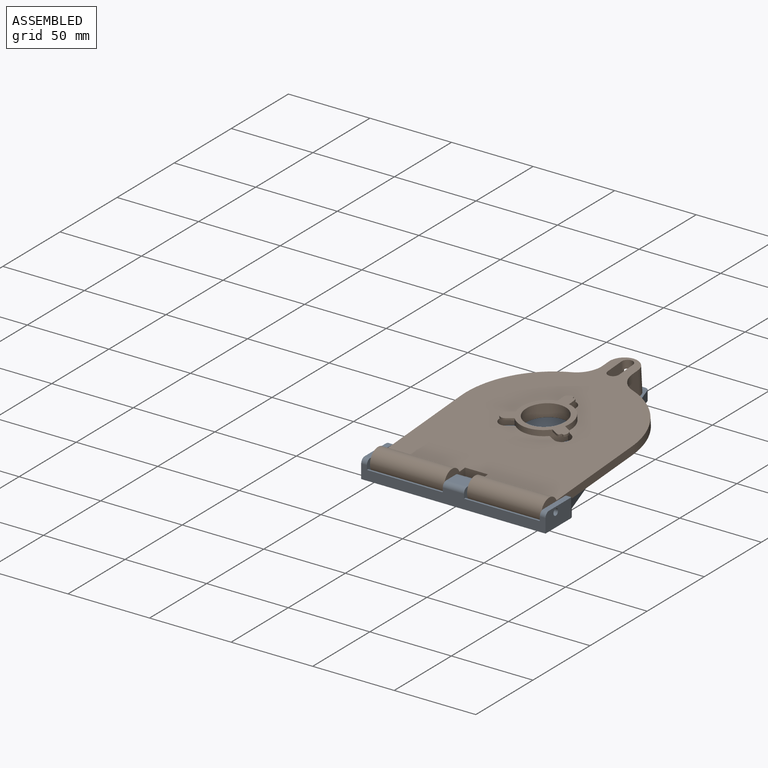
[diagram: assembled view]
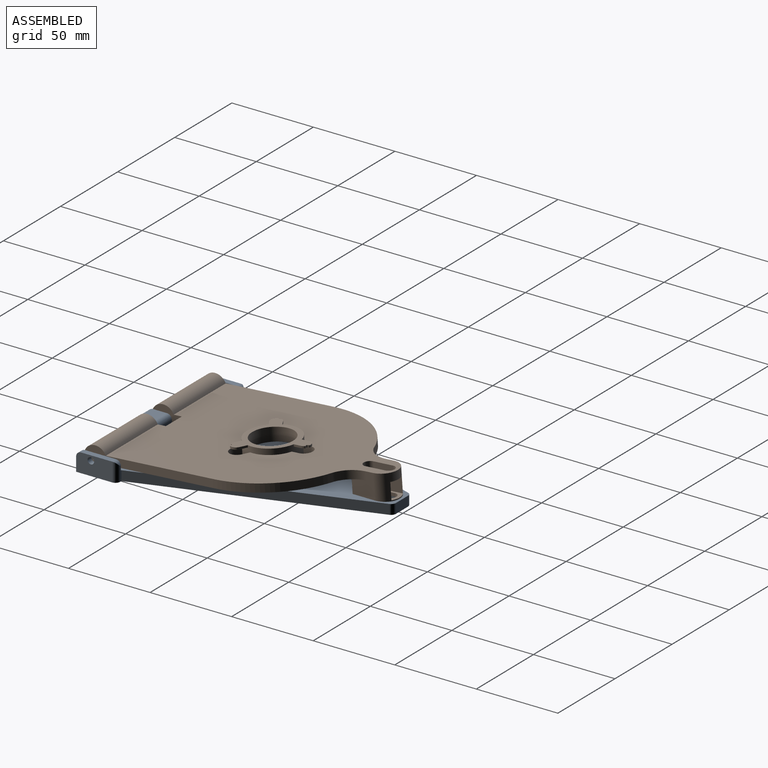
[diagram: assembled view, second angle]
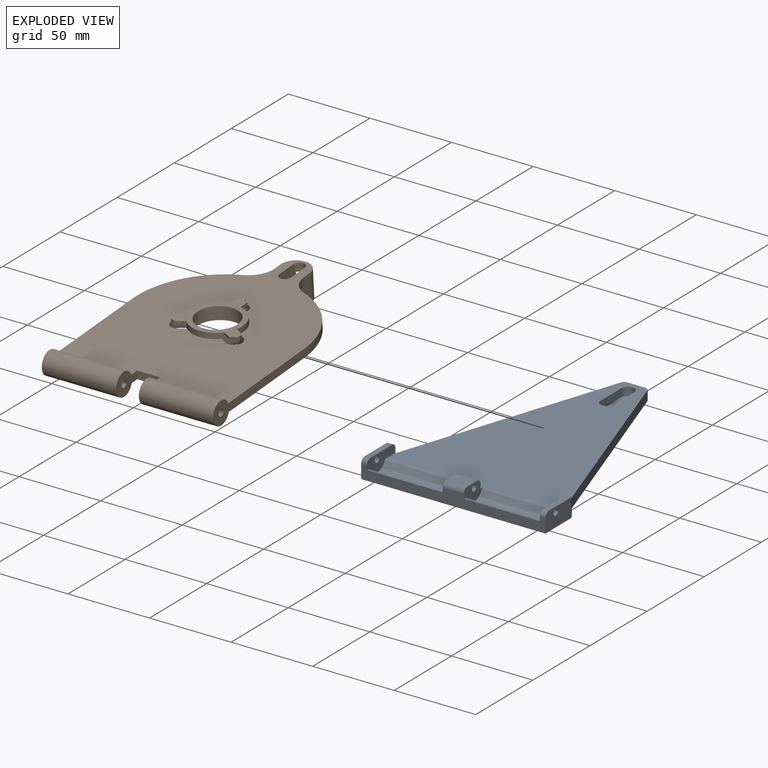
[diagram: exploded view]
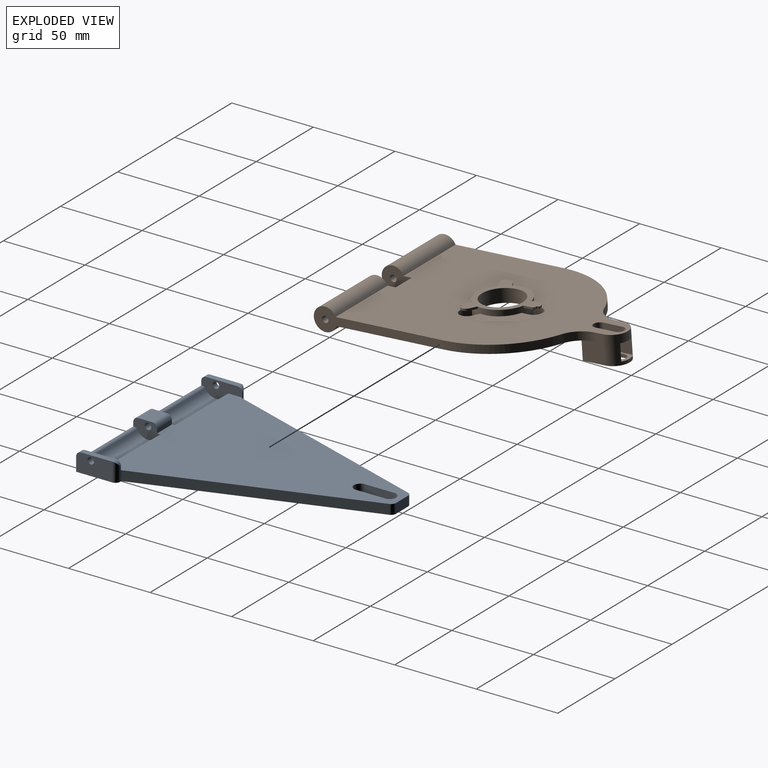
[diagram: exploded view, second angle]
FCSTD DOCUMENT  (FreeCAD 1.2R44643 (Git))
Label: ReolinkCameraSupport
License: All rights reserved
LicenseURL: https://en.wikipedia.org/wiki/All_rights_reserved
objects: Sketcher::SketchObject×19, PartDesign::Pocket×11, PartDesign::Pad×10, App::FeaturePython×6, PartDesign::Fillet×4, App::Point×3, PartDesign::PolarPattern×2, PartDesign::Body×2, App::Link×2, PartDesign::Line×1, PartDesign::Hole×1, PartDesign::SubShapeBinder×1, Assembly::JointGroup×1, Assembly::SimulationGroup×1, Assembly::AssemblyObject×1
note: 124 computed .brp shape members not serialized (recipe doc carries the construction recipe); baked Part::Feature solids carry a one-line shape summary decoded from their .brp

FEATURE [App::Point] Origin001
  Role = Origin
FEATURE [Sketcher::SketchObject] Sketch
  ArcFitTolerance = 1e-06
  AttachmentSupport = -> [Origin]
  ExternalTypes = [0]
  FullyConstrained = true
  MakeInternals = false
  MapMode = 5
  sketch-geometry (4):
    g0: LineSegment StartX=0 StartY=0 StartZ=0 EndX=1.04166e-11 EndY=72.5 EndZ=0
    g1: ArcOfCircle CenterX=52.5 CenterY=72.5 CenterZ=0 NormalX=0 NormalY=0 NormalZ=1 AngleXU=0 Radius=52.5 StartAngle=-2.04e-14 EndAngle=3.14159
    g2: LineSegment StartX=105 StartY=72.5 StartZ=0 EndX=105 EndY=0 EndZ=0
    g3: LineSegment StartX=105 StartY=0 StartZ=0 EndX=0 EndY=0 EndZ=0
  constraints (10):
    c: Coincident(g-1,g0)
    c: PointOnObject(g0,g-2)
    c: Tangent(g0,g1) = 1.5708
    c: Tangent(g1,g2) = 1.5708
    c: Coincident(g2,g3)
    c: Coincident(g3,g0)
    c: Horizontal(g3)
    c: Vertical(g2)
    c: Radius(g1) = 52.5
    c: Distance(g1,g3) = 20
FEATURE [PartDesign::Pad] Pad
  Direction = (0,0,1)
  Length = 5
  Length2 = 10
  Profile = -> Sketch
  ReferenceAxis = -> Sketch [N_Axis]
  Refine = true
  SideType = 0
  Suppressed = false
  Type = 0
  Type2 = 0
FEATURE [Sketcher::SketchObject] Sketch001
  ArcFitTolerance = 1e-06
  AttachmentSupport = -> [Pad]
  ExternalGeometry = -> [Pad]
  ExternalTypes = [0]
  FullyConstrained = true
  MakeInternals = false
  MapMode = 5
  Placement = pos=(0,0,5) rot=(0,0,1;0rad)
  sketch-geometry (1):
    g0: Circle CenterX=52.5 CenterY=72.5 CenterZ=0 NormalX=0 NormalY=0 NormalZ=1 AngleXU=0 Radius=15.8
  constraints (2):
    c: Diameter(g0) = 31.6
    c: Coincident(g0,g-3)
FEATURE [PartDesign::Pad] Pad001
  BaseFeature = -> Pad
  Direction = (0,0,1)
  Length = 3.5
  Length2 = 10
  Profile = -> Sketch001
  ReferenceAxis = -> Sketch001 [N_Axis]
  Refine = true
  SideType = 0
  Suppressed = false
  Type = 0
  Type2 = 0
FEATURE [Sketcher::SketchObject] Sketch002
  ArcFitTolerance = 1e-06
  AttachmentSupport = -> [Pad001]
  ExternalGeometry = -> [Pad001]
  ExternalTypes = [0]
  FullyConstrained = true
  MakeInternals = false
  MapMode = 5
  Placement = pos=(0,0,8.5) rot=(0,0,1;0rad)
  sketch-geometry (11):
    g0: LineSegment StartX=49 StartY=87.9075 StartZ=0 EndX=49 EndY=92.4075 EndZ=0
    g1: ArcOfCircle CenterX=52.5 CenterY=92.4075 CenterZ=0 NormalX=0 NormalY=0 NormalZ=1 AngleXU=0 Radius=3.5 StartAngle=8e-16 EndAngle=0.608246
    g2: LineSegment StartX=56 StartY=92.4075 StartZ=0 EndX=56 EndY=87.9075 EndZ=0
    g3: LineSegment StartX=56 StartY=87.9075 StartZ=0 EndX=49 EndY=87.9075 EndZ=0
    g4: GeomPoint X=52.5 Y=87.9075 Z=0
    g5: LineSegment [constr] StartX=52.5 StartY=95.9075 StartZ=0 EndX=56 EndY=95.9075 EndZ=0
    g6: LineSegment [constr] StartX=56 StartY=95.9075 StartZ=0 EndX=56 EndY=92.4075 EndZ=0
    g7: LineSegment StartX=53.5 StartY=95.7616 StartZ=0 EndX=53.8741 EndY=94.3075 EndZ=0
    g8: LineSegment StartX=53.8741 StartY=94.3075 StartZ=0 EndX=55.3723 EndY=94.4075 EndZ=0
    g9: ArcOfCircle CenterX=52.5 CenterY=92.4075 CenterZ=0 NormalX=0 NormalY=0 NormalZ=1 AngleXU=0 Radius=3.5 StartAngle=1.28104 EndAngle=3.14159
    g10: GeomPoint [constr] X=52.5 Y=72.5 Z=0
  constraints (28):
    c: PointOnObject(g0,g-3)
    c: Vertical(g0)
    c: Tangent(g0,g9) = 1.5708
    c: Tangent(g1,g2) = 1.5708
    c: Coincident(g2,g3)
    c: Coincident(g3,g0)
    c: Horizontal(g3)
    c: Vertical(g2)
    c: PointOnObject(g2,g-3)
    c: Symmetric(g3,g3,g4)
    c: DistanceX(g3,g3) = 7
    c: Horizontal(g5)
    c: Coincident(g5,g6)
    c: Coincident(g6,g1)
    c: Vertical(g6)
    c: DistanceY(g2,g5) = 8
    c: Vertical(g5,g1)
    c: Coincident(g7,g8)
    c: Distance(g8,g5) = 1.5
    c: DistanceX(g5,g7) = 1
    c: Equal(g8,g7)
    c: Distance(g7,g5) = 1.6
    c: PointOnObject(g5,g9)
    c: Coincident(g7,g9)
    c: Coincident(g8,g1)
    c: Coincident(g1,g9)
    c: Equal(g9,g1)
    c: Coincident(g10,g-3)
FEATURE [PartDesign::Pad] Pad002
  BaseFeature = -> Pad001
  Direction = (0,0,1)
  Length = 1.25
  Length2 = 10
  Profile = -> Sketch002
  ReferenceAxis = -> Sketch002 [N_Axis]
  Refine = true
  Reversed = true
  SideType = 0
  Suppressed = false
  Type = 0
  Type2 = 0
FEATURE [PartDesign::Fillet] Fillet
  Base = -> Pad002 [Edge30,Edge34,Edge32]
  BaseFeature = -> Pad002
  Radius = 0.5
  Refine = true
  SupportTransform = false
  Suppressed = false
  UseAllEdges = false
FEATURE [PartDesign::Line] DatumLine
  AttacherType = Attacher::AttachEngineLine
  AttachmentOffset = pos=(0,-1.09,0) rot=(0,0,1;0rad)
  AttachmentSupport = -> [Fillet]
  Length = 20
  MapMode = 42
  Placement = pos=(52.4969,72.5013,-6.22e-14) rot=(0,0,1;0rad)
  ResizeMode = 0
FEATURE [PartDesign::PolarPattern] PolarPattern
  Angle = 360
  Axis = -> DatumLine
  BaseFeature = -> Fillet
  Mode = 0
  Occurrences = 3
  Offset = 120
  Originals = -> [Pad002,Fillet]
  Refine = true
  SpacingPattern = [0]
  Spacings = [-1,-1]
  Suppressed = false
  TransformMode = 0
FEATURE [Sketcher::SketchObject] Sketch003
  ArcFitTolerance = 1e-06
  AttachmentSupport = -> [PolarPattern]
  ExternalGeometry = -> [PolarPattern]
  ExternalTypes = [0]
  FullyConstrained = true
  MakeInternals = false
  MapMode = 5
  Placement = pos=(5.9e-15,0,8.5) rot=(0,0,1;0rad)
  sketch-geometry (1):
    g0: Circle CenterX=52.5 CenterY=72.5 CenterZ=0 NormalX=0 NormalY=0 NormalZ=1 AngleXU=0 Radius=12.53
  constraints (2):
    c: Coincident(g0,g-32)
    c: Distance(g0,g-32) = 3.27
FEATURE [PartDesign::Pocket] Pocket
  BaseFeature = -> PolarPattern
  Direction = (0,0,-1)
  Length = 5
  Length2 = 5
  Profile = -> Sketch003
  ReferenceAxis = -> Sketch003 [N_Axis]
  Refine = true
  SideType = 0
  Suppressed = false
  Type = 1
  Type2 = 0
FEATURE [Sketcher::SketchObject] Sketch004
  ArcFitTolerance = 1e-06
  AttachmentSupport = -> [Pocket]
  ExternalGeometry = -> [Pocket]
  ExternalTypes = [0]
  FullyConstrained = true
  MakeInternals = false
  MapMode = 5
  Placement = pos=(0,0,0) rot=(1,0,0;3.14159rad)
  sketch-geometry (1):
    g0: Circle CenterX=52.5 CenterY=-72.5 CenterZ=0 NormalX=0 NormalY=0 NormalZ=1 AngleXU=0 Radius=13.5
  constraints (2):
    c: Diameter(g0) = 27
    c: Coincident(g0,g-7)
FEATURE [PartDesign::Pocket] Pocket001
  BaseFeature = -> Pocket
  Direction = (0,0,1)
  Length = 4
  Length2 = 5
  Profile = -> Sketch004
  ReferenceAxis = -> Sketch004 [N_Axis]
  Refine = true
  SideType = 0
  Suppressed = false
  Type = 0
  Type2 = 0
FEATURE [Sketcher::SketchObject] Sketch005
  ArcFitTolerance = 1e-06
  AttachmentSupport = -> [Pocket001]
  ExternalGeometry = -> [Pocket001]
  ExternalTypes = [0]
  FullyConstrained = true
  MakeInternals = false
  MapMode = 5
  Placement = pos=(0,0,5) rot=(0,0,1;0rad)
  sketch-geometry (6):
    g0: LineSegment StartX=47.5 StartY=87.488 StartZ=0 EndX=47.5 EndY=91.988 EndZ=0
    g1: ArcOfCircle CenterX=52.5 CenterY=91.988 CenterZ=0 NormalX=0 NormalY=0 NormalZ=1 AngleXU=0 Radius=5 StartAngle=1.1e-15 EndAngle=3.14159
    g2: LineSegment StartX=57.5 StartY=91.988 StartZ=0 EndX=57.5 EndY=87.488 EndZ=0
    g3: LineSegment StartX=57.5 StartY=87.488 StartZ=0 EndX=47.5 EndY=87.488 EndZ=0
    g4: GeomPoint X=52.5 Y=87.488 Z=0
    g5: GeomPoint X=52.5 Y=96.988 Z=0
  constraints (14):
    c: PointOnObject(g0,g-7)
    c: Vertical(g0)
    c: Tangent(g0,g1) = 1.5708
    c: Tangent(g1,g2) = 1.5708
    c: Coincident(g2,g3)
    c: Coincident(g3,g0)
    c: Horizontal(g3)
    c: PointOnObject(g2,g-7)
    c: Vertical(g2)
    c: DistanceX(g3,g3) = 10
    c: Symmetric(g3,g3,g4)
    c: PointOnObject(g5,g1)
    c: Vertical(g1,g5)
    c: DistanceY(g4,g5) = 9.5
FEATURE [PartDesign::Pocket] Pocket002
  BaseFeature = -> Pocket001
  Direction = (0,0,-1)
  Length = 5
  Length2 = 5
  Profile = -> Sketch005
  ReferenceAxis = -> Sketch005 [N_Axis]
  Refine = true
  SideType = 0
  Suppressed = false
  Type = 0
  Type2 = 0
FEATURE [PartDesign::PolarPattern] PolarPattern001
  Angle = 360
  Axis = -> DatumLine
  BaseFeature = -> Pocket002
  Mode = 0
  Occurrences = 3
  Offset = 120
  Originals = -> [Pocket002]
  Refine = true
  SpacingPattern = [0]
  Spacings = [-1,-1]
  Suppressed = false
  TransformMode = 0
FEATURE [PartDesign::Pad] Pad003
  BaseFeature = -> PolarPattern001
  Direction = (-1.8e-15,1e-15,-1)
  Length = 10
  Length2 = 10
  Profile = -> PolarPattern001 [Face37,Face38,Face36]
  Refine = true
  SideType = 0
  Suppressed = false
  Type = 3
  Type2 = 0
  UpToFace = -> PolarPattern001 [Face57]
FEATURE [App::Point] Origin003
  Role = Origin
FEATURE [Sketcher::SketchObject] Sketch006
  ArcFitTolerance = 1e-06
  AttachmentSupport = -> [Pad003]
  ExternalGeometry = -> [Pad003]
  ExternalTypes = [0]
  FullyConstrained = true
  MakeInternals = false
  MapMode = 5
  Placement = pos=(0,0,5) rot=(0,0,1;0rad)
  sketch-geometry (1):
    g0: Circle CenterX=52.5 CenterY=72.5 CenterZ=0 NormalX=0 NormalY=0 NormalZ=1 AngleXU=0 Radius=52.5
  constraints (2):
    c: Coincident(g0,g-3)
    c: PointOnObject(g-3,g0)
FEATURE [Sketcher::SketchObject] Sketch007
  ArcFitTolerance = 1e-06
  AttachmentSupport = -> [Pad003]
  ExternalGeometry = -> [Pad003]
  ExternalTypes = [0]
  FullyConstrained = true
  MakeInternals = false
  MapMode = 5
  Placement = pos=(105,0,0) rot=(0.57735,0.57735,0.57735;2.0944rad)
  sketch-geometry (1):
    g0: Circle CenterX=0 CenterY=2.5 CenterZ=0 NormalX=0 NormalY=0 NormalZ=1 AngleXU=0 Radius=7
  constraints (2):
    c: Diameter(g0) = 14
    c: Symmetric(g-4,g-4,g0)
FEATURE [PartDesign::Pad] Pad004
  BaseFeature = -> Pad003
  Direction = (1,0,0)
  Length = 10
  Length2 = 10
  Profile = -> Sketch007
  ReferenceAxis = -> Sketch007 [N_Axis]
  Refine = true
  SideType = 0
  Suppressed = false
  Type = 3
  Type2 = 0
  UpToFace = -> Pad003 [Face2]
FEATURE [Sketcher::SketchObject] Sketch008
  ArcFitTolerance = 1e-06
  AttachmentSupport = -> [Pad004]
  ExternalGeometry = -> [Pad004]
  ExternalTypes = [0]
  FullyConstrained = true
  MakeInternals = false
  MapMode = 5
  Placement = pos=(0,0,5) rot=(0,0,1;0rad)
  sketch-geometry (4):
    g0: LineSegment StartX=43.5 StartY=124.223 StartZ=0 EndX=43.5 EndY=140.223 EndZ=0
    g1: ArcOfCircle CenterX=52.5 CenterY=140.223 CenterZ=0 NormalX=0 NormalY=0 NormalZ=1 AngleXU=0 Radius=9 StartAngle=0 EndAngle=3.14159
    g2: LineSegment StartX=61.5 StartY=140.223 StartZ=0 EndX=61.5 EndY=124.223 EndZ=0
    g3: LineSegment StartX=61.5 StartY=124.223 StartZ=0 EndX=43.5 EndY=124.223 EndZ=0
  constraints (11):
    c: PointOnObject(g0,g-4)
    c: Vertical(g0)
    c: Tangent(g0,g1) = 1.5708
    c: Tangent(g1,g2) = 1.5708
    c: Coincident(g2,g3)
    c: Coincident(g3,g0)
    c: Horizontal(g3)
    c: Vertical(g2)
    c: Vertical(g1,g-16)
    c: DistanceX(g3,g3) = 18
    c: DistanceY(g2,g2) = 16
FEATURE [PartDesign::Pad] Pad005
  BaseFeature = -> Pad004
  Direction = (0,0,1)
  Length = 10
  Length2 = 10
  Profile = -> Sketch008
  ReferenceAxis = -> Sketch008 [N_Axis]
  Refine = true
  SideType = 0
  Suppressed = false
  Type = 3
  Type2 = 0
  UpToFace = -> Pad004 [Face2]
FEATURE [Sketcher::SketchObject] Sketch009
  ArcFitTolerance = 1e-06
  AttachmentSupport = -> [Pad005]
  ExternalGeometry = -> [Pad005]
  ExternalTypes = [0]
  FullyConstrained = true
  MakeInternals = false
  MapMode = 5
  Placement = pos=(0,0,5) rot=(0,0,1;0rad)
  sketch-geometry (4):
    g0: ArcOfCircle CenterX=52.5 CenterY=143.723 CenterZ=0 NormalX=0 NormalY=0 NormalZ=1 AngleXU=0 Radius=3.5 StartAngle=-2.7e-15 EndAngle=3.14159
    g1: ArcOfCircle CenterX=52.5 CenterY=131.723 CenterZ=0 NormalX=0 NormalY=0 NormalZ=1 AngleXU=0 Radius=3.5 StartAngle=3.14159 EndAngle=6.28319
    g2: LineSegment StartX=56 StartY=143.723 StartZ=0 EndX=56 EndY=131.723 EndZ=0
    g3: LineSegment StartX=49 StartY=143.723 StartZ=0 EndX=49 EndY=131.723 EndZ=0
  constraints (10):
    c: Tangent(g0,g2) = 1.5708
    c: Tangent(g0,g3) = -1.5708
    c: Tangent(g1,g2) = 1.5708
    c: Tangent(g1,g3) = -1.5708
    c: Equal(g0,g1)
    c: Vertical(g2)
    c: DistanceY(g2,g2) = 12
    c: Radius(g1) = 3.5
    c: DistanceY(g-8,g0) = 3.5
    c: Vertical(g0,g-8)
FEATURE [PartDesign::Pocket] Pocket003
  BaseFeature = -> Pad005
  Direction = (0,0,-1)
  Length = 5
  Length2 = 5
  Profile = -> Sketch009
  ReferenceAxis = -> Sketch009 [N_Axis]
  Refine = true
  SideType = 0
  Suppressed = false
  Type = 0
  Type2 = 0
FEATURE [PartDesign::Fillet] Fillet001
  Base = -> Pocket003 [Edge58,Edge57]
  BaseFeature = -> Pocket003
  Radius = 15
  Refine = true
  SupportTransform = false
  Suppressed = false
  UseAllEdges = false
FEATURE [Sketcher::SketchObject] Sketch010
  ArcFitTolerance = 1e-06
  AttachmentSupport = -> [Fillet001]
  ExternalGeometry = -> [Fillet001]
  ExternalTypes = [0,0,0,0]
  FullyConstrained = true
  MakeInternals = false
  MapMode = 5
  Placement = pos=(0,0,0) rot=(1,0,0;3.14159rad)
  sketch-geometry (8):
    g0: LineSegment StartX=47.5 StartY=-126.742 StartZ=0 EndX=47.5 EndY=-147.706 EndZ=0
    g1: LineSegment StartX=47.5 StartY=-126.742 StartZ=0 EndX=43.5 EndY=-126.742 EndZ=0
    g2: LineSegment StartX=43.5 StartY=-126.742 StartZ=0 EndX=43.5 EndY=-140.223 EndZ=0
    g3: LineSegment StartX=61.5 StartY=-126.742 StartZ=0 EndX=57.5 EndY=-126.742 EndZ=0
    g4: LineSegment StartX=57.5 StartY=-126.742 StartZ=0 EndX=57.5 EndY=-147.706 EndZ=0
    g5: LineSegment StartX=61.5 StartY=-140.223 StartZ=0 EndX=61.5 EndY=-126.742 EndZ=0
    g6: ArcOfCircle CenterX=52.5 CenterY=-140.223 CenterZ=0 NormalX=0 NormalY=0 NormalZ=1 AngleXU=0 Radius=9 StartAngle=3.14159 EndAngle=4.12336
    g7: ArcOfCircle CenterX=52.5 CenterY=-140.223 CenterZ=0 NormalX=0 NormalY=0 NormalZ=1 AngleXU=0 Radius=9 StartAngle=5.30142 EndAngle=6.28318
  constraints (24):
    c: PointOnObject(g0,g-11)
    c: Vertical(g0)
    c: Coincident(g0,g1)
    c: Horizontal(g1)
    c: Coincident(g1,g2)
    c: PointOnObject(g2,g-11)
    c: Vertical(g2)
    c: Horizontal(g3)
    c: Coincident(g3,g4)
    c: PointOnObject(g4,g-11)
    c: Vertical(g4)
    c: Coincident(g5,g3)
    c: Vertical(g5)
    c: Equal(g3,g1)
    c: Horizontal(g1,g3)
    c: Equal(g0,g4)
    c: Coincident(g6,g-11)
    c: Coincident(g6,g0)
    c: Coincident(g7,g6)
    c: Coincident(g7,g5)
    c: Coincident(g7,g4)
    c: Distance(g0,g4) = 10
    c: Distance(g1,g1) = 4
    c: Coincident(g2,g6)
FEATURE [PartDesign::Pad] Pad006
  BaseFeature = -> Fillet001
  Direction = (0,0,-1)
  Length = 10
  Length2 = 10
  Profile = -> Sketch010
  ReferenceAxis = -> Sketch010 [N_Axis]
  Refine = true
  SideType = 0
  Suppressed = false
  Type = 0
  Type2 = 0
FEATURE [PartDesign::Hole] Hole
  BaseFeature = -> Pad006
  BaseProfileType = 7
  CustomThreadClearance = 0
  Depth = 381.162
  DepthType = 1
  Diameter = 4
  DrillForDepth = false
  DrillPoint = 1
  DrillPointAngle = 118
  HoleCutCountersinkAngle = 90
  HoleCutCustomValues = false
  HoleCutDepth = 0
  HoleCutDiameter = 0
  HoleCutType = 0
  ModelThread = false
  Profile = -> Pad006 [Face3]
  Refine = true
  Suppressed = false
  Tapered = false
  TaperedAngle = 90
  ThreadClass = 0
  ThreadDepth = 381.162
  ThreadDepthType = 0
  ThreadDiameter = 4
  ThreadDirection = 0
  ThreadFit = 0
  ThreadSize = 0
  ThreadType = 0
  Threaded = false
  UseCustomThreadClearance = false
FEATURE [Sketcher::SketchObject] Sketch011
  ArcFitTolerance = 1e-06
  AttachmentSupport = -> [Hole]
  ExternalGeometry = -> [Hole]
  ExternalTypes = [0,0]
  FullyConstrained = true
  MakeInternals = false
  MapMode = 5
  Placement = pos=(0,0,-10) rot=(1,0,0;3.14159rad)
  sketch-geometry (4):
    g0: LineSegment StartX=43.5 StartY=-126.742 StartZ=0 EndX=61.5 EndY=-126.742 EndZ=0
    g1: LineSegment StartX=61.5 StartY=-126.742 StartZ=0 EndX=61.5 EndY=-140.223 EndZ=0
    g2: ArcOfCircle CenterX=52.5 CenterY=-140.223 CenterZ=0 NormalX=0 NormalY=0 NormalZ=1 AngleXU=0 Radius=9 StartAngle=3.14159 EndAngle=6.28319
    g3: LineSegment StartX=43.5 StartY=-140.223 StartZ=0 EndX=43.5 EndY=-126.742 EndZ=0
  constraints (8):
    c: Coincident(g-6,g0)
    c: Coincident(g0,g-10)
    c: Coincident(g0,g1)
    c: Coincident(g1,g-10)
    c: Tangent(g1,g2) = 1.5708
    c: Coincident(g2,g-5)
    c: Coincident(g3,g2)
    c: Coincident(g3,g0)
FEATURE [PartDesign::Pad] Pad007
  BaseFeature = -> Hole
  Direction = (0,0,-1)
  Length = 2
  Length2 = 10
  Profile = -> Sketch011
  ReferenceAxis = -> Sketch011 [N_Axis]
  Refine = true
  SideType = 0
  Suppressed = false
  Type = 0
  Type2 = 0
FEATURE [Sketcher::SketchObject] Sketch012
  ArcFitTolerance = 1e-06
  AttachmentSupport = -> [Pad007]
  ExternalGeometry = -> [Pad007]
  ExternalTypes = [0,0,0,0]
  FullyConstrained = true
  MakeInternals = false
  MapMode = 5
  Placement = pos=(0,0,-10) rot=(0,0,1;0rad)
FEATURE [PartDesign::Pocket] Pocket004
  BaseFeature = -> Pad007
  Direction = (0,0,-1)
  Length = 5
  Length2 = 5
  Profile = -> Sketch012
  ReferenceAxis = -> Sketch012 [N_Axis]
  Refine = true
  SideType = 0
  Suppressed = false
  Type = 0
  Type2 = 0
FEATURE [Sketcher::SketchObject] Sketch013
  ArcFitTolerance = 1e-06
  AttachmentSupport = -> [Origin]
  ExternalGeometry = -> [Pocket004]
  ExternalTypes = [0]
  FullyConstrained = true
  MakeInternals = false
  MapMode = 5
  sketch-geometry (5):
    g0: LineSegment StartX=45.5 StartY=-20.5383 StartZ=0 EndX=59.5 EndY=-20.5383 EndZ=0
    g1: LineSegment StartX=59.5 StartY=-20.5383 StartZ=0 EndX=59.5 EndY=6.53835 EndZ=0
    g2: LineSegment StartX=59.5 StartY=6.53835 StartZ=0 EndX=45.5 EndY=6.53835 EndZ=0
    g3: LineSegment StartX=45.5 StartY=6.53835 StartZ=0 EndX=45.5 EndY=-20.5383 EndZ=0
    g4: GeomPoint [constr] X=52.5 Y=-7 Z=0
  constraints (12):
    c: Coincident(g0,g1)
    c: Coincident(g1,g2)
    c: Coincident(g2,g3)
    c: Coincident(g3,g0)
    c: Horizontal(g0)
    c: Horizontal(g2)
    c: Vertical(g1)
    c: Vertical(g3)
    c: Symmetric(g2,g0,g4)
    c: Distance(g1,g3) = 14
    c: Symmetric(g-6,g-6,g4)
    c: PointOnObject(g1,g-8)
FEATURE [PartDesign::Pocket] Pocket005
  BaseFeature = -> Pocket004
  Direction = (0,0,-1)
  Length = 5
  Length2 = 5
  Profile = -> Sketch013
  ReferenceAxis = -> Sketch013 [N_Axis]
  Refine = true
  SideType = 2
  Suppressed = false
  Type = 1
  Type2 = 0
FEATURE [PartDesign::Pocket] Pocket006
  BaseFeature = -> Pocket005
  Direction = (0,1,0)
  Length = 5
  Length2 = 5
  Profile = -> Pocket005 [Face5]
  Refine = true
  SideType = 0
  Suppressed = false
  Type = 0
  Type2 = 0
FEATURE [PartDesign::Body] Body
  AllowCompound = false
  Group = -> [Sketch,Pad,Sketch001,Pad001,Sketch002,Pad002,Fillet,DatumLine,PolarPattern,Sketch003,Pocket,Sketch004,Pocket001,Sketch005,Pocket002,PolarPattern001,Pad003,Sketch006,Sketch007,Pad004,Sketch008,Pad005,Sketch009,Pocket003,Fillet001,Sketch010,Pad006,Hole,Sketch011,Pad007,Sketch012,Pocket004,Sketch013,Pocket005,Pocket006]
  Origin = -> Origin
  Tip = -> Pocket006
FEATURE [PartDesign::SubShapeBinder] Binder
  BindCopyOnChange = 0
  BindMode = 0
  ClaimChildren = false
  Context = -> Body001 [Binder.]
  Fuse = false
  MakeFace = true
  OffsetFill = false
  OffsetIntersection = false
  OffsetJoinType = 0
  OffsetOpenResult = false
  PartialLoad = false
  Refine = true
  Relative = true
  Support = -> [Body[Pocket006.Face18,Pocket006.Face36,Pocket006.Face3,Pocket006.Face39,Pocket006.Face6,Pocket006.Face9,Pocket006.Face38]]
  _Version = 2
FEATURE [Sketcher::SketchObject] Sketch014
  ArcFitTolerance = 1e-06
  AttachmentSupport = -> [Origin002]
  ExternalGeometry = -> [Binder]
  ExternalTypes = [0,0]
  FullyConstrained = true
  MakeInternals = false
  MapMode = 5
  sketch-geometry (9):
    g0: LineSegment StartX=45 StartY=151.223 StartZ=0 EndX=2.3022e-12 EndY=16 EndZ=0
    g1: LineSegment StartX=2.3022e-12 StartY=16 StartZ=0 EndX=-4 EndY=16 EndZ=0
    g2: LineSegment StartX=-4 StartY=16 StartZ=0 EndX=-4 EndY=-9 EndZ=0
    g3: LineSegment StartX=-4 StartY=-9 StartZ=0 EndX=109 EndY=-9 EndZ=0
    g4: LineSegment StartX=109 StartY=-9 StartZ=0 EndX=109 EndY=16 EndZ=0
    g5: LineSegment StartX=109 StartY=16 StartZ=0 EndX=105 EndY=16 EndZ=0
    g6: LineSegment StartX=105 StartY=16 StartZ=0 EndX=60 EndY=151.223 EndZ=0
    g7: LineSegment StartX=60 StartY=151.223 StartZ=0 EndX=45 EndY=151.223 EndZ=0
    g8: GeomPoint X=52.5 Y=151.223 Z=0
  constraints (25):
    c: PointOnObject(g0,g-15)
    c: Coincident(g0,g1)
    c: Horizontal(g1)
    c: Coincident(g1,g2)
    c: Vertical(g2)
    c: Coincident(g2,g3)
    c: Horizontal(g3)
    c: Coincident(g3,g4)
    c: Vertical(g4)
    c: Coincident(g4,g5)
    c: PointOnObject(g5,g-9)
    c: Horizontal(g5)
    c: Coincident(g5,g6)
    c: Coincident(g6,g7)
    c: Coincident(g7,g0)
    c: Horizontal(g7)
    c: Symmetric(g7,g7,g8)
    c: Vertical(g8,g-31)
    c: DistanceX(g7,g7) = 15
    c: Distance(g-5,g7) = 2
    c: Equal(g5,g1)
    c: Distance(g1,g1) = 4
    c: Distance(g-35,g3) = 2
    c: Horizontal(g1,g5)
    c: DistanceY(g2,g2) = 25
FEATURE [PartDesign::Pad] Pad008
  Direction = (0,0,1)
  Length = 6
  Length2 = 10
  Profile = -> Sketch014
  ReferenceAxis = -> Sketch014 [N_Axis]
  Refine = true
  Reversed = true
  SideType = 0
  Suppressed = false
  Type = 0
  Type2 = 0
FEATURE [Sketcher::SketchObject] Sketch015
  ArcFitTolerance = 1e-06
  AttachmentSupport = -> [Pad008]
  ExternalGeometry = -> [Pad008,Binder]
  ExternalTypes = [0,0,0,0]
  FullyConstrained = true
  MakeInternals = false
  MapMode = 5
  sketch-geometry (12):
    g0: LineSegment StartX=-4 StartY=-9 StartZ=0 EndX=-0.5 EndY=-9 EndZ=0
    g1: LineSegment StartX=-0.5 StartY=-9 StartZ=0 EndX=-0.5 EndY=16 EndZ=0
    g2: LineSegment StartX=-0.5 StartY=16 StartZ=0 EndX=-4 EndY=16 EndZ=0
    g3: LineSegment StartX=-4 StartY=16 StartZ=0 EndX=-4 EndY=-9 EndZ=0
    g4: LineSegment StartX=109 StartY=-9 StartZ=0 EndX=109 EndY=16 EndZ=0
    g5: LineSegment StartX=109 StartY=16 StartZ=0 EndX=105.5 EndY=16 EndZ=0
    g6: LineSegment StartX=105.5 StartY=16 StartZ=0 EndX=105.5 EndY=-9 EndZ=0
    g7: LineSegment StartX=105.5 StartY=-9 StartZ=0 EndX=109 EndY=-9 EndZ=0
    g8: LineSegment StartX=46 StartY=-9 StartZ=0 EndX=59 EndY=-9 EndZ=0
    g9: LineSegment StartX=59 StartY=-9 StartZ=0 EndX=59 EndY=5.53835 EndZ=0
    g10: LineSegment StartX=59 StartY=5.53835 StartZ=0 EndX=46 EndY=5.53835 EndZ=0
    g11: LineSegment StartX=46 StartY=5.53835 StartZ=0 EndX=46 EndY=-9 EndZ=0
  constraints (33):
    c: Coincident(g0,g1)
    c: Coincident(g1,g2)
    c: Coincident(g2,g3)
    c: Coincident(g3,g0)
    c: Horizontal(g0)
    c: Horizontal(g2)
    c: Vertical(g1)
    c: DistanceX(g2,g2) = 3.5
    c: Coincident(g-5,g2)
    c: Coincident(g0,g-6)
    c: Coincident(g4,g5)
    c: Coincident(g5,g6)
    c: Coincident(g6,g7)
    c: Coincident(g7,g4)
    c: Vertical(g4)
    c: Vertical(g6)
    c: Horizontal(g5)
    c: Horizontal(g7)
    c: Coincident(g4,g-7)
    c: PointOnObject(g5,g-8)
    c: DistanceX(g5,g5) = 3.5
    c: Coincident(g8,g9)
    c: Coincident(g9,g10)
    c: Coincident(g10,g11)
    c: Coincident(g11,g8)
    c: Horizontal(g8)
    c: Horizontal(g10)
    c: Vertical(g9)
    c: Vertical(g11)
    c: PointOnObject(g8,g-6)
    c: Distance(g-12,g9) = 0.5
    c: Distance(g11,g-11) = 0.5
    c: Distance(g-13,g10) = 6
FEATURE [PartDesign::Pad] Pad009
  BaseFeature = -> Pad008
  Direction = (0,0,1)
  Length = 5.5
  Length2 = 10
  Profile = -> Sketch015
  ReferenceAxis = -> Sketch015 [N_Axis]
  Refine = true
  SideType = 0
  Suppressed = false
  Type = 0
  Type2 = 0
FEATURE [PartDesign::Pocket] Pocket007
  BaseFeature = -> Pad009
  Direction = (-1,0,0)
  Length = 5
  Length2 = 5
  Profile = -> Binder [Edge45]
  Refine = true
  SideType = 2
  Suppressed = false
  Type = 1
  Type2 = 0
FEATURE [PartDesign::Fillet] Fillet002
  Base = -> Pocket007 [Edge1,Edge5,Edge9,Edge37,Edge50,Edge44,Edge36,Edge42,Edge31,Edge10]
  BaseFeature = -> Pocket007
  Radius = 3
  Refine = true
  SupportTransform = false
  Suppressed = false
  UseAllEdges = false
FEATURE [Sketcher::SketchObject] Sketch016
  ArcFitTolerance = 1e-06
  AttachmentSupport = -> [Fillet002]
  ExternalGeometry = -> [Binder]
  ExternalTypes = [0]
  FullyConstrained = true
  MakeInternals = false
  MapMode = 5
  Placement = pos=(46,0,0) rot=(0.57735,-0.57735,-0.57735;2.0944rad)
  sketch-geometry (1):
    g0: Circle CenterX=0 CenterY=2.5 CenterZ=0 NormalX=0 NormalY=0 NormalZ=1 AngleXU=0 Radius=7.4
  constraints (2):
    c: Coincident(g0,g-3)
    c: Distance(g-3,g0) = 0.4
FEATURE [PartDesign::Pocket] Pocket008
  BaseFeature = -> Fillet002
  Direction = (1,0,0)
  Length = 5
  Length2 = 5
  Profile = -> Sketch016
  ReferenceAxis = -> Sketch016 [N_Axis]
  Refine = true
  SideType = 0
  Suppressed = false
  Type = 3
  Type2 = 0
  UpToFace = -> Fillet002 [Face11]
FEATURE [Sketcher::SketchObject] Sketch017
  ArcFitTolerance = 1e-06
  AttachmentSupport = -> [Pocket008]
  ExternalGeometry = -> [Binder,Pocket008]
  ExternalTypes = [0,0]
  FullyConstrained = true
  MakeInternals = false
  MapMode = 5
  Placement = pos=(59,0,0) rot=(0.57735,0.57735,0.57735;2.0944rad)
  sketch-geometry (1):
    g0: Circle CenterX=0 CenterY=2.5 CenterZ=0 NormalX=0 NormalY=0 NormalZ=1 AngleXU=0 Radius=7.4
  constraints (2):
    c: Coincident(g0,g-6)
    c: PointOnObject(g-6,g0)
FEATURE [PartDesign::Pocket] Pocket009
  BaseFeature = -> Pocket008
  Direction = (-1,0,0)
  Length = 5
  Length2 = 5
  Profile = -> Sketch017
  ReferenceAxis = -> Sketch017 [N_Axis]
  Refine = true
  SideType = 0
  Suppressed = false
  Type = 3
  Type2 = 0
  UpToFace = -> Pocket008 [Face9]
FEATURE [PartDesign::Fillet] Fillet003
  Base = -> Pocket009 [Edge13,Edge9,Edge40,Edge52]
  BaseFeature = -> Pocket009
  Radius = 2
  Refine = true
  SupportTransform = false
  Suppressed = false
  UseAllEdges = false
FEATURE [Sketcher::SketchObject] Sketch018
  ArcFitTolerance = 1e-06
  AttachmentSupport = -> [Fillet003]
  ExternalGeometry = -> [Binder]
  ExternalTypes = [0]
  FullyConstrained = true
  MakeInternals = false
  MapMode = 5
  sketch-geometry (7):
    g0: ArcOfCircle [constr] CenterX=52.5 CenterY=131.723 CenterZ=0 NormalX=0 NormalY=0 NormalZ=1 AngleXU=0 Radius=4 StartAngle=3.14159 EndAngle=6.28319
    g1: ArcOfCircle CenterX=52.5 CenterY=143.723 CenterZ=0 NormalX=0 NormalY=0 NormalZ=1 AngleXU=0 Radius=4 StartAngle=3.1e-15 EndAngle=3.14159
    g2: LineSegment StartX=48.5 StartY=131.723 StartZ=0 EndX=48.5 EndY=143.723 EndZ=0
    g3: LineSegment StartX=56.5 StartY=131.723 StartZ=0 EndX=56.5 EndY=143.723 EndZ=0
    g4: LineSegment StartX=48.5 StartY=131.723 StartZ=0 EndX=48.5 EndY=125.723 EndZ=0
    g5: ArcOfCircle CenterX=52.5 CenterY=125.723 CenterZ=0 NormalX=0 NormalY=0 NormalZ=1 AngleXU=0 Radius=4 StartAngle=3.14159 EndAngle=6.28319
    g6: LineSegment StartX=56.5 StartY=125.723 StartZ=0 EndX=56.5 EndY=131.723 EndZ=0
  constraints (15):
    c: Tangent(g0,g2) = 1.5708
    c: Tangent(g0,g3) = -1.5708
    c: Tangent(g1,g2) = 1.5708
    c: Tangent(g1,g3) = -1.5708
    c: Equal(g0,g1)
    c: Radius(g0) = 4
    c: Coincident(g0,g-34)
    c: Coincident(g1,g-31)
    c: Coincident(g0,g4)
    c: Tangent(g4,g5) = -1.5708
    c: Tangent(g5,g6) = -1.5708
    c: Vertical(g6)
    c: Coincident(g0,g6)
    c: DistanceY(g6,g6) = 6
    c: Vertical(g4)
FEATURE [PartDesign::Pocket] Pocket010
  BaseFeature = -> Fillet003
  Direction = (0,0,-1)
  Length = 5
  Length2 = 5
  Profile = -> Sketch018
  ReferenceAxis = -> Sketch018 [N_Axis]
  Refine = true
  SideType = 0
  Suppressed = false
  Type = 0
  Type2 = 0
FEATURE [PartDesign::Body] Body001
  AllowCompound = false
  Group = -> [Binder,Sketch014,Pad008,Sketch015,Pad009,Pocket007,Fillet002,Sketch016,Pocket008,Sketch017,Pocket009,Fillet003,Sketch018,Pocket010]
  Origin = -> Origin002
  Tip = -> Pocket010
FEATURE [App::Point] Origin005  label="Origin006"
  Role = Origin
FEATURE [App::Link] Body002
  LinkedObject = -> Body001
FEATURE [App::FeaturePython] GroundedJoint  # Assembly grounded joint (typed FeaturePython)
  ObjectToGround = -> Body002
FEATURE [App::Link] Body003
  LinkPlacement = pos=(-8.0422e-12,0.177868,0.00633547) rot=(1,0,0;0.071208rad)
  LinkedObject = -> Body
  Placement = pos=(-8.0422e-12,0.177868,0.00633547) rot=(1,0,0;0.071208rad)
FEATURE [App::FeaturePython] Joint  label="Revolute"  # Assembly joint (typed FeaturePython)
  Angle = 0
  AngleMax = 0
  AngleMin = 0
  Detach1 = false
  Detach2 = false
  Distance = 0
  Distance2 = 0
  EnableAngleMax = false
  EnableAngleMin = false
  EnableLengthMax = false
  EnableLengthMin = false
  JointType = 1 (Revolute)
  LengthMax = 0
  LengthMin = 0
  Offset2 = pos=(0,0,2.25) rot=(0,0,1;0rad)
  Placement1 = pos=(107.25,-1.52864e-11,2.5) rot=(0.707107,0,0.707107;3.14159rad)
  Placement2 = pos=(107.25,-1.52868e-11,2.5) rot=(0.707107,0,0.707107;3.14159rad)
  Reference1 = -> Assembly [Body002.Face27,Body002.Face27]
  Reference2 = -> Assembly [Body003.Edge57,Body003.Edge57]
  Suppressed = false
FEATURE [Assembly::JointGroup] Joints
  Group = -> [GroundedJoint,Joint]
FEATURE [App::FeaturePython] Motion  label="Revolute (Angular)"  # WARN: FeaturePython — macro-defined, semantics opaque (R4)
  Formula = time/4
  Joint = -> Joint
  MotionType = 0
FEATURE [App::FeaturePython] Simulation  # WARN: FeaturePython — macro-defined, semantics opaque (R4)
  Group = -> [Motion]
  aTimeStart = 0
  bTimeEnd = 1
  cTimeStepOutput = 0.01
  fGlobalErrorTolerance = 1e-06
  jFramesPerSecond = 30
FEATURE [App::FeaturePython] Motion001  label="Revolute (Angular)001"  # WARN: FeaturePython — macro-defined, semantics opaque (R4)
  Formula = time/2
  Joint = -> Joint
  MotionType = 0
FEATURE [App::FeaturePython] Simulation001  label="Simulation002"  # WARN: FeaturePython — macro-defined, semantics opaque (R4)
  Group = -> [Motion001]
  aTimeStart = 0
  bTimeEnd = 1
  cTimeStepOutput = 0.01
  fGlobalErrorTolerance = 1e-06
  jFramesPerSecond = 30
FEATURE [Assembly::SimulationGroup] Simulations
  Group = -> [Simulation,Simulation001]
FEATURE [Assembly::AssemblyObject] Assembly
  Group = -> [Joints,Body002,GroundedJoint,Body003,Joint,Simulations,Simulation,Motion,Simulation001,Motion001]
  Origin = -> Origin004
  Type = Assembly
